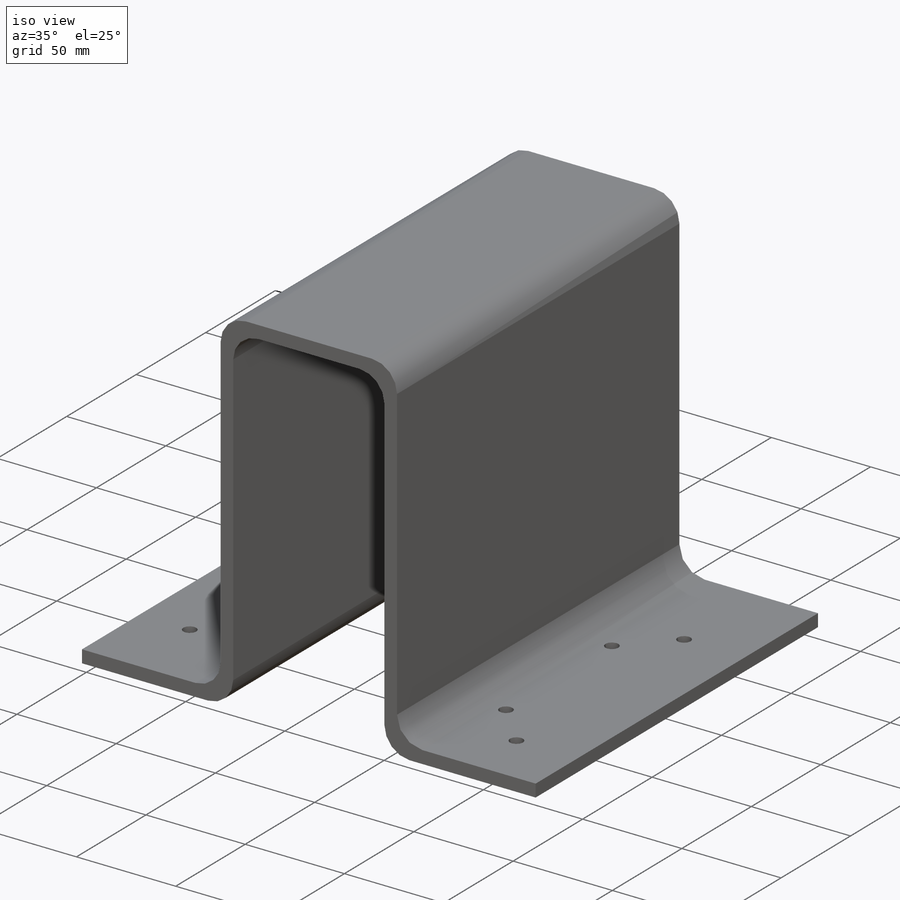
[diagram: iso view]
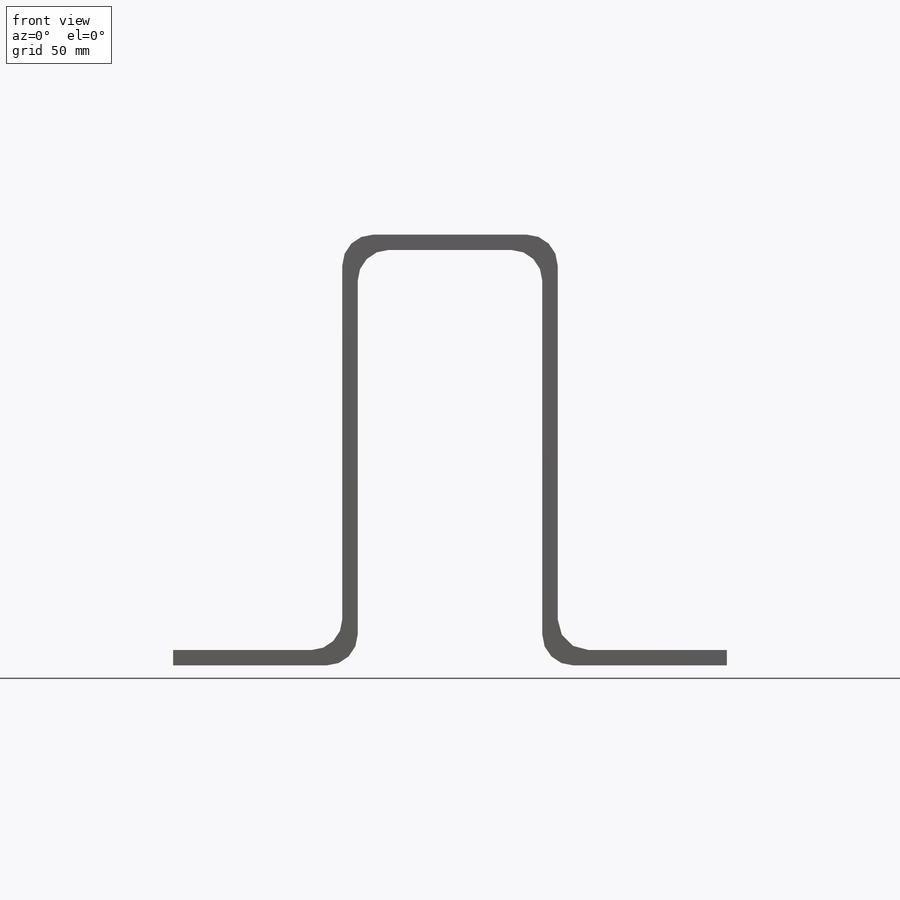
[diagram: front view]
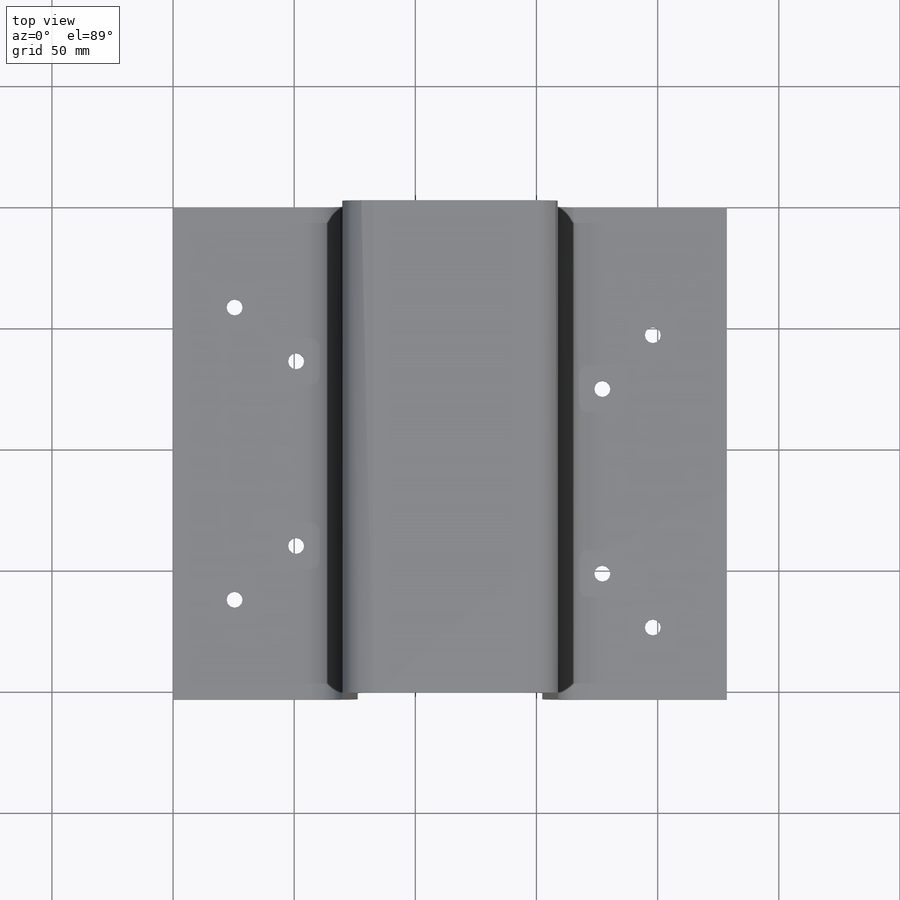
[diagram: top view]
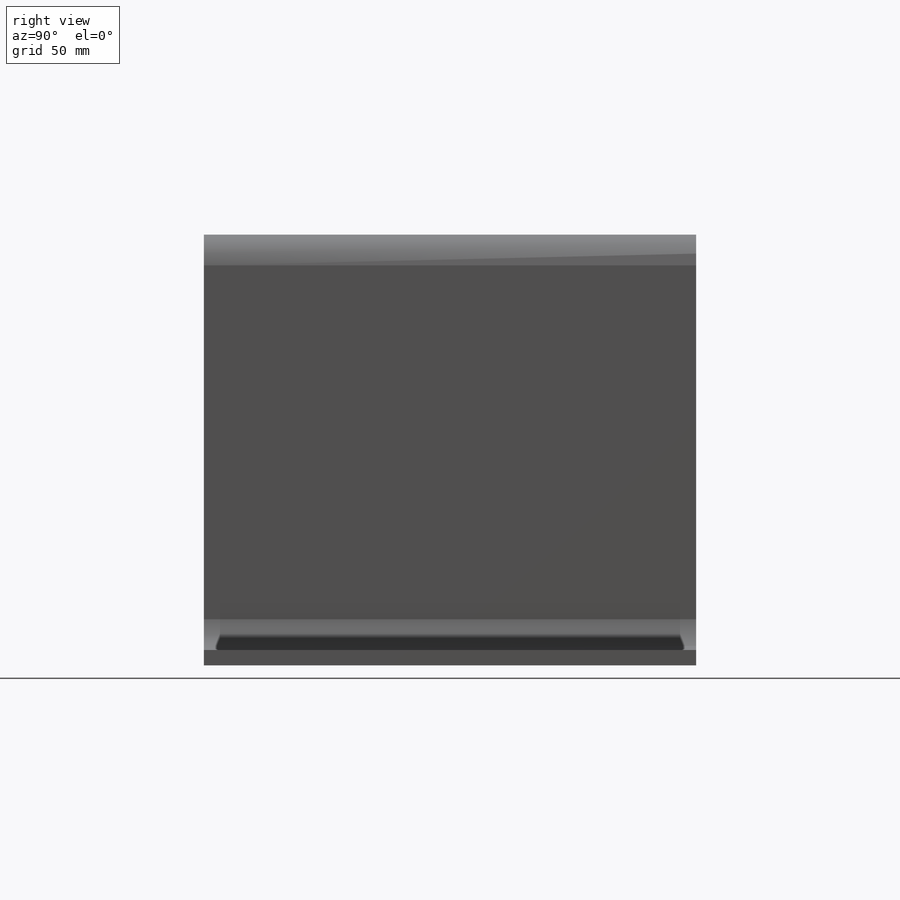
[diagram: right view]
SOLIDWORKS PART (.sldprt)
format: sldprt  version: not decoded by parser v0  size: 135,680 bytes
history: native  units: mm
features: sketch x3, cut_extrude x2, material x1, extrude x1 (+13 scaffold rows collapsed)
feature tree (20):
  scaffold x13  (default folders/planes/origin — collapsed)
  material  "Material <not specified>"
  sketch  "Sketch1"  dims[c1.D7=12.7mm c1.D12=12.7mm c1.D13=12.7mm c1.D14=12.7mm c1.D15=12.7mm c1.D16=12.7mm c1.D17=12.7mm c1.D18=12.7mm c1.D1=228.6mm c1.D2=6.35mm c1.D3=6.35mm c1.D4=69.85mm c1.D5=69.85mm c1.D6=171.45mm c2.D7=167.132mm c2.D8=76.2mm c2.D9=171.45mm c2.D10=76.2mm c2.D11=76.2mm]
  extrude  "Extrude1"  Depth=203.2mm
  sketch  "Sketch3"  dims[D7=6.604mm D8=6.604mm D9=6.604mm D10=6.604mm D1=25.4mm D2=60.325mm D3=60.325mm D4=25.4mm D5=38.1mm D6=38.1mm]
  cut_extrude  "Cut-Extrude1"  Depth=6.35mm
  sketch  "Sketch4"  dims[D6=6.604mm D7=6.604mm D8=6.604mm D9=6.604mm D1=25.4mm D2=60.325mm D3=60.325mm D4=38.1mm D5=38.1mm]
  cut_extrude  "Cut-Extrude2"  Depth=6.35mm
decode coverage: 6 of 6 modeling features carry decoded parameters
note: suppression state not decoded; provenance and decode notes live in map.json
